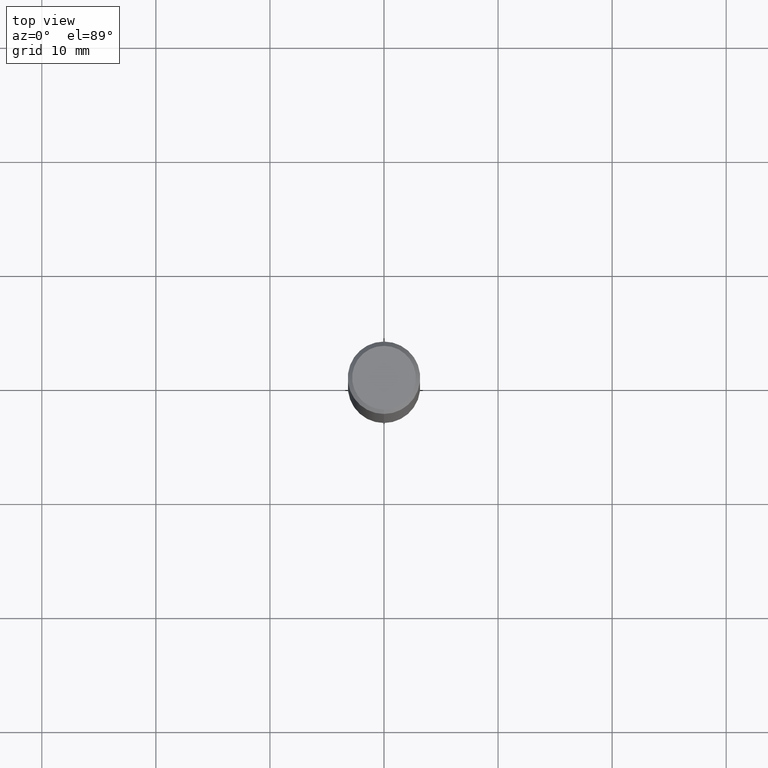
[diagram: clean part render]
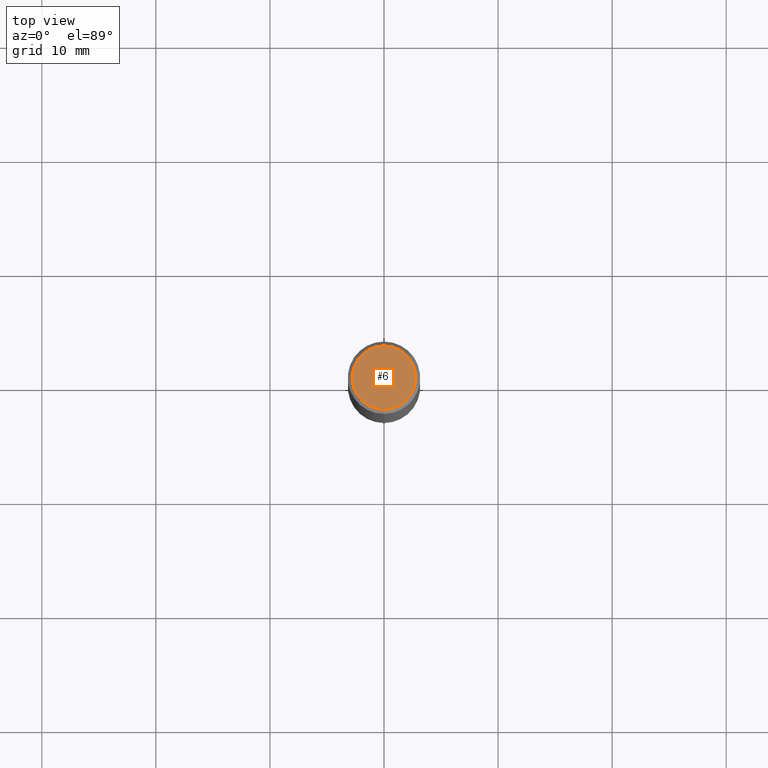
[diagram: same view with one face highlighted and labeled with its STEP entity id]
A machine part, top view. The second image highlights one B-rep face of the part: STEP entity #6.
In plain terms, the highlighted planar face has unit normal (0, -0, -1).
Its self-contained STEP definition (entity closure, byte-faithful):
#6 = ADVANCED_FACE ( 'NONE', ( #311 ), #502, .F. ) ;
#66 = DIRECTION ( 'NONE',  ( -6.982962677686265922E-15, -1.000000000000000000, 3.491749109436874948E-15 ) ) ;
#69 = EDGE_LOOP ( 'NONE', ( #463, #193 ) ) ;
#71 = VERTEX_POINT ( 'NONE', #237 ) ;
#109 = AXIS2_PLACEMENT_3D ( 'NONE', #415, #297, #66 ) ;
#120 = CARTESIAN_POINT ( 'NONE',  ( 7.681258945454894762E-16, 0.1100000000000000283, -3.532678750746533168E-16 ) ) ;
#137 = CARTESIAN_POINT ( 'NONE',  ( -1.507493109710656302E-45, 2.152630291465505922E-31, 6.164905392680595126E-17 ) ) ;
#150 = CARTESIAN_POINT ( 'NONE',  ( -8.061085147381547495E-16, -0.1100000000000000283, 4.457414559648622375E-16 ) ) ;
#193 = ORIENTED_EDGE ( 'NONE', *, *, #451, .T. ) ;
#208 = DIRECTION ( 'NONE',  ( -2.445281822978917058E-29, 3.491749109436874948E-15, 1.000000000000000000 ) ) ;
#216 = AXIS2_PLACEMENT_3D ( 'NONE', #120, #275, #461 ) ;
#218 = CIRCLE ( 'NONE', #239, 0.1100000000000000283 ) ;
#237 = CARTESIAN_POINT ( 'NONE',  ( 8.204981146281365554E-16, 0.1100000000000000283, -3.224433481112504089E-16 ) ) ;
#239 = AXIS2_PLACEMENT_3D ( 'NONE', #137, #208, #250 ) ;
#245 = EDGE_CURVE ( 'NONE', #71, #426, #218, .T. ) ;
#250 = DIRECTION ( 'NONE',  ( -6.982962677686265922E-15, -1.000000000000000000, 3.491749109436874948E-15 ) ) ;
#275 = DIRECTION ( 'NONE',  ( 2.445281822978917058E-29, -3.491749109436874554E-15, -1.000000000000000000 ) ) ;
#297 = DIRECTION ( 'NONE',  ( -2.445281822978917058E-29, 3.491749109436874948E-15, 1.000000000000000000 ) ) ;
#311 = FACE_OUTER_BOUND ( 'NONE', #69, .T. ) ;
#413 = CIRCLE ( 'NONE', #109, 0.1100000000000000283 ) ;
#415 = CARTESIAN_POINT ( 'NONE',  ( -1.507493109710656302E-45, 2.152630291465505922E-31, 6.164905392680595126E-17 ) ) ;
#426 = VERTEX_POINT ( 'NONE', #150 ) ;
#451 = EDGE_CURVE ( 'NONE', #426, #71, #413, .T. ) ;
#461 = DIRECTION ( 'NONE',  ( 6.982962677686265922E-15, 1.000000000000000000, -3.491749109436874554E-15 ) ) ;
#463 = ORIENTED_EDGE ( 'NONE', *, *, #245, .T. ) ;
#502 = PLANE ( 'NONE',  #216 ) ;